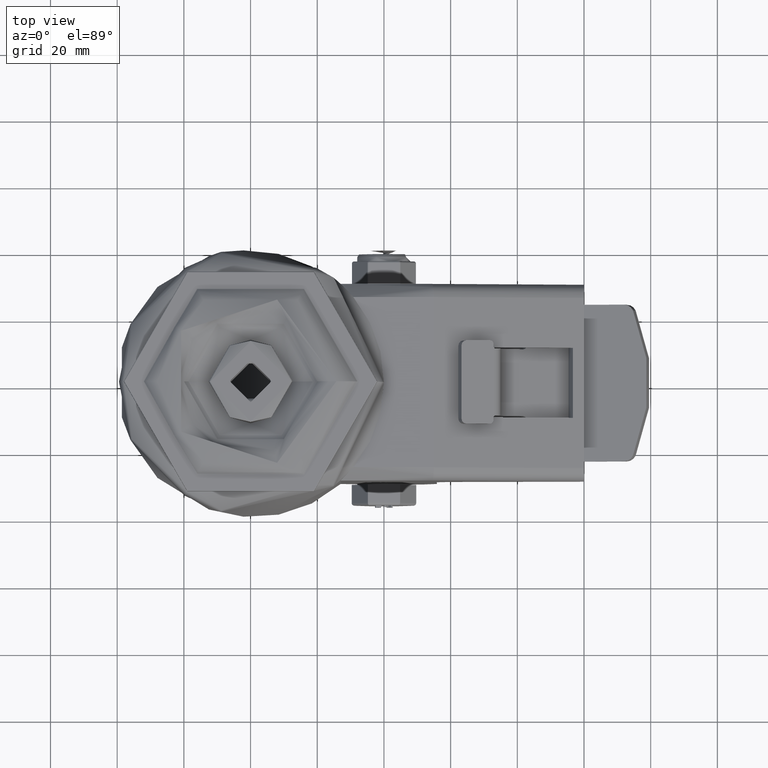
[diagram: clean part render]
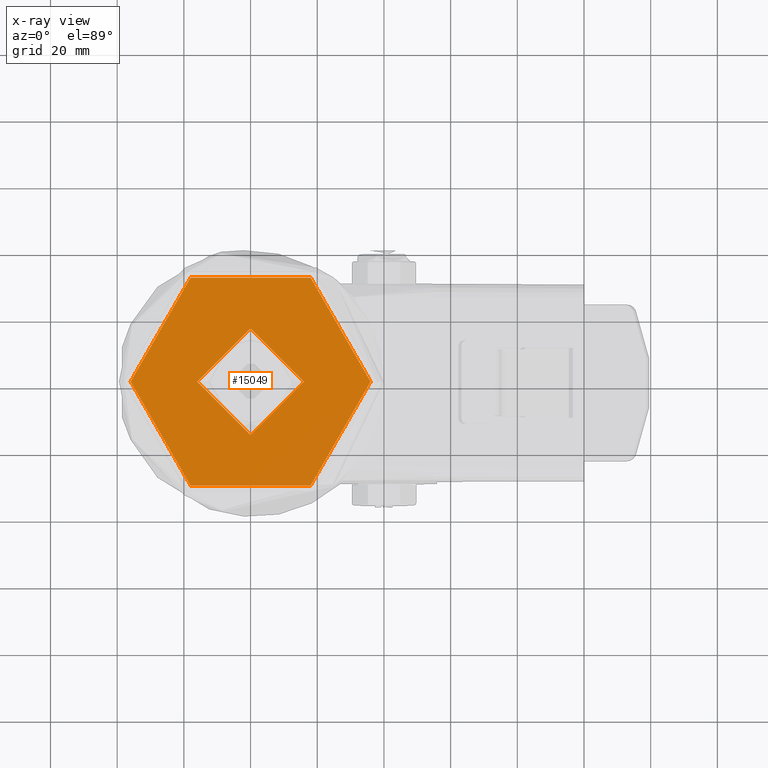
[diagram: x-ray — body ghosted, one internal face saturated and labeled with its STEP entity id]
A machine part, top view, then the same camera in x-ray: the body is ghosted and one INTERNAL B-rep face — a face not visible from any outside direction — is saturated and labeled: STEP entity #15049.
In plain terms, the highlighted planar face has unit normal (-0, 0, -1).
Its self-contained STEP definition (entity closure, byte-faithful):
#1137=FACE_BOUND('',#2846,.T.);
#1409=PLANE('',#16411);
#1934=FACE_OUTER_BOUND('',#2845,.T.);
#2845=EDGE_LOOP('',(#11267));
#2846=EDGE_LOOP('',(#11268));
#5967=CIRCLE('',#16295,16.);
#5970=CIRCLE('',#16299,36.);
#6641=VERTEX_POINT('',#22166);
#6643=VERTEX_POINT('',#22172);
#8242=EDGE_CURVE('',#6641,#6641,#5967,.T.);
#8245=EDGE_CURVE('',#6643,#6643,#5970,.T.);
#11267=ORIENTED_EDGE('',*,*,#8245,.F.);
#11268=ORIENTED_EDGE('',*,*,#8242,.F.);
#15049=ADVANCED_FACE('',(#1934,#1137),#1409,.F.);
#16295=AXIS2_PLACEMENT_3D('',#22168,#18244,#18245);
#16299=AXIS2_PLACEMENT_3D('',#22174,#18252,#18253);
#16411=AXIS2_PLACEMENT_3D('',#23894,#18608,#18609);
#18244=DIRECTION('center_axis',(2.89120579329468E-16,0.,1.));
#18245=DIRECTION('ref_axis',(-1.,0.,2.89120579329468E-16));
#18252=DIRECTION('center_axis',(-2.89120579329468E-16,0.,-1.));
#18253=DIRECTION('ref_axis',(1.,1.22464679914735E-16,-2.89120579329468E-16));
#18608=DIRECTION('center_axis',(-2.89120579329468E-16,0.,-1.));
#18609=DIRECTION('ref_axis',(-1.,0.,2.89120579329468E-16));
#22166=CARTESIAN_POINT('',(16.,1.95943487863577E-15,-2.50000000000002));
#22168=CARTESIAN_POINT('Origin',(0.,0.,-2.50000000000002));
#22172=CARTESIAN_POINT('',(36.,4.40872847693047E-15,-2.50000000000002));
#22174=CARTESIAN_POINT('Origin',(0.,0.,-2.50000000000001));
#23894=CARTESIAN_POINT('Origin',(0.,0.,-2.50000000000001));